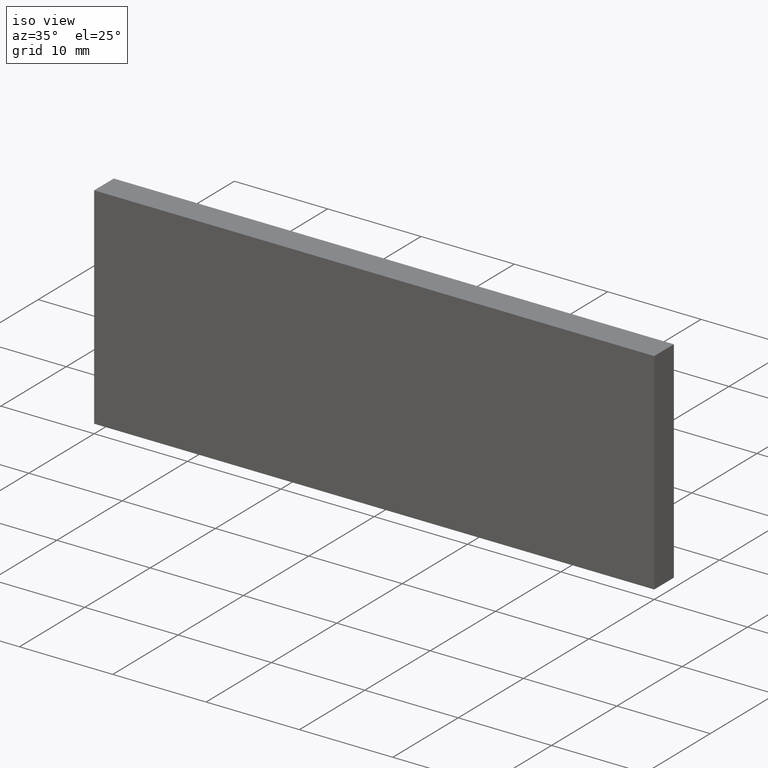
[diagram: clean part render]
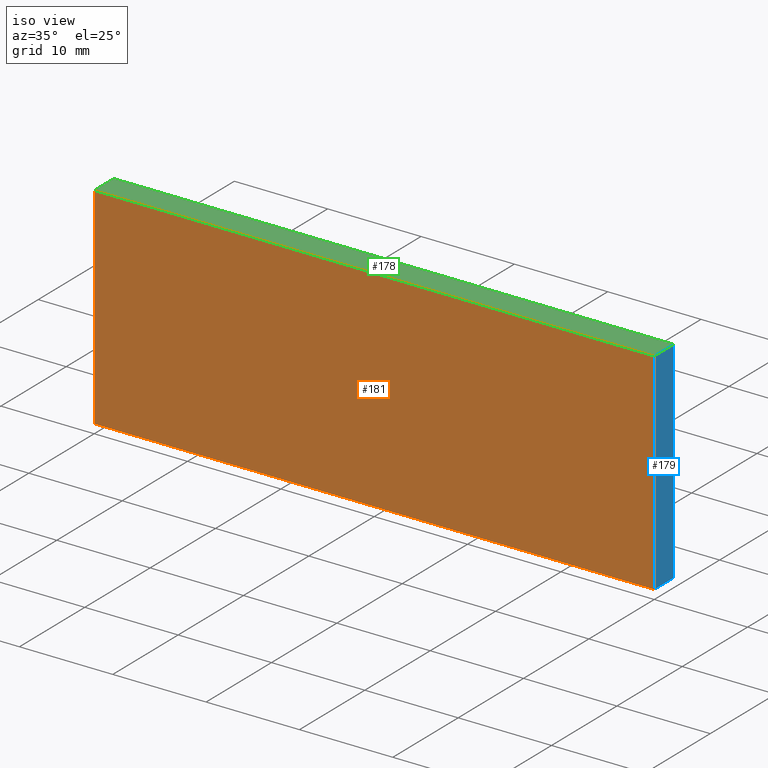
[diagram: same view with three faces highlighted in distinct colors, each labeled with its STEP entity id]
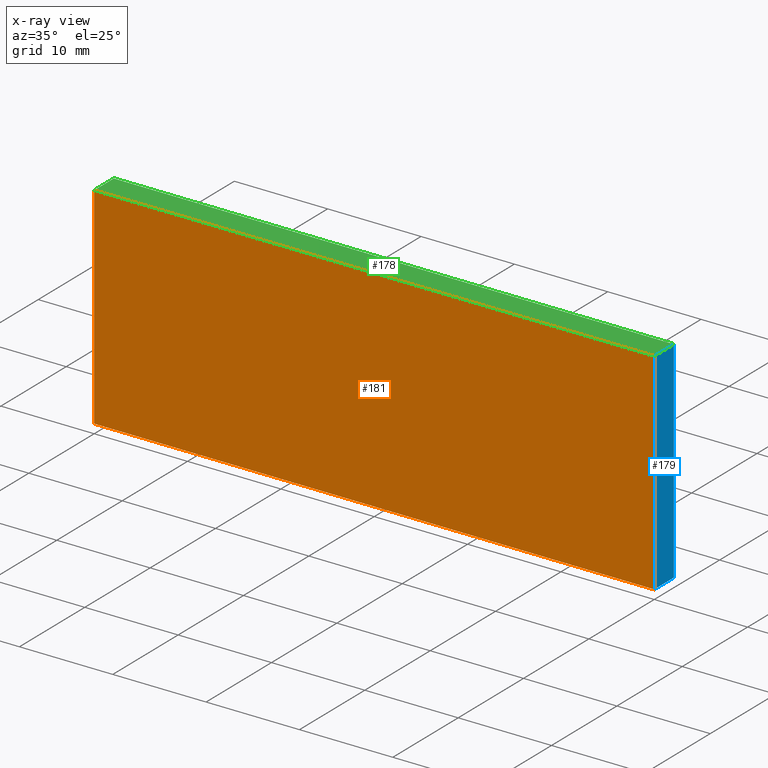
[diagram: x-ray of the same camera — body ghosted, the three highlighted faces saturated]
A machine part, iso view with three faces highlighted in distinct colors.
The next image is the same camera in x-ray (body ghosted, the three faces saturated) — at least one of them is partly hidden behind the body in this view.
Their STEP definitions:

[orange] entity #181 — the highlighted planar face has unit normal (-0, 1, 0).
#3 = CARTESIAN_POINT ( 'NONE',  ( 0.0000000000000000000, 0.0000000000000000000, -11.29999999999999900 ) ) ;
#5 = CARTESIAN_POINT ( 'NONE',  ( 30.00000000000000000, 0.0000000000000000000, -11.29999999999999900 ) ) ;
#8 = CARTESIAN_POINT ( 'NONE',  ( -30.00000000000000000, 0.0000000000000000000, 11.29999999999999900 ) ) ;
#9 = DIRECTION ( 'NONE',  ( -1.000000000000000000, -0.0000000000000000000, -0.0000000000000000000 ) ) ;
#14 = VERTEX_POINT ( 'NONE', #8 ) ;
#19 = CARTESIAN_POINT ( 'NONE',  ( -30.00000000000000000, 0.0000000000000000000, -11.29999999999999900 ) ) ;
#20 = VERTEX_POINT ( 'NONE', #5 ) ;
#21 = VERTEX_POINT ( 'NONE', #19 ) ;
#22 = CARTESIAN_POINT ( 'NONE',  ( 30.00000000000000000, 0.0000000000000000000, 11.29999999999999900 ) ) ;
#25 = VERTEX_POINT ( 'NONE', #22 ) ;
#28 = ORIENTED_EDGE ( 'NONE', *, *, #161, .F. ) ;
#33 = ORIENTED_EDGE ( 'NONE', *, *, #149, .F. ) ;
#34 = ORIENTED_EDGE ( 'NONE', *, *, #155, .F. ) ;
#35 = ORIENTED_EDGE ( 'NONE', *, *, #139, .F. ) ;
#39 = LINE ( 'NONE', #210, #44 ) ;
#44 = VECTOR ( 'NONE', #208, 1000.000000000000000 ) ;
#57 = VECTOR ( 'NONE', #9, 1000.000000000000000 ) ;
#58 = LINE ( 'NONE', #3, #57 ) ;
#72 = LINE ( 'NONE', #218, #73 ) ;
#73 = VECTOR ( 'NONE', #211, 1000.000000000000000 ) ;
#92 = LINE ( 'NONE', #198, #93 ) ;
#93 = VECTOR ( 'NONE', #209, 1000.000000000000000 ) ;
#101 = EDGE_LOOP ( 'NONE', ( #28, #33, #34, #35 ) ) ;
#114 = FACE_OUTER_BOUND ( 'NONE', #101, .T. ) ;
#139 = EDGE_CURVE ( 'NONE', #20, #21, #58, .T. ) ;
#149 = EDGE_CURVE ( 'NONE', #14, #25, #39, .T. ) ;
#155 = EDGE_CURVE ( 'NONE', #21, #14, #72, .T. ) ;
#161 = EDGE_CURVE ( 'NONE', #25, #20, #92, .T. ) ;
#170 = AXIS2_PLACEMENT_3D ( 'NONE', #267, #189, #185 ) ;
#181 = ADVANCED_FACE ( 'NONE', ( #114 ), #284, .F. ) ;
#185 = DIRECTION ( 'NONE',  ( 0.0000000000000000000, -0.0000000000000000000, 1.000000000000000000 ) ) ;
#189 = DIRECTION ( 'NONE',  ( -0.0000000000000000000, 1.000000000000000000, 0.0000000000000000000 ) ) ;
#198 = CARTESIAN_POINT ( 'NONE',  ( 30.00000000000000000, 0.0000000000000000000, 0.0000000000000000000 ) ) ;
#208 = DIRECTION ( 'NONE',  ( 1.000000000000000000, 0.0000000000000000000, 0.0000000000000000000 ) ) ;
#209 = DIRECTION ( 'NONE',  ( -0.0000000000000000000, 0.0000000000000000000, -1.000000000000000000 ) ) ;
#210 = CARTESIAN_POINT ( 'NONE',  ( 0.0000000000000000000, 0.0000000000000000000, 11.29999999999999900 ) ) ;
#211 = DIRECTION ( 'NONE',  ( 0.0000000000000000000, -0.0000000000000000000, 1.000000000000000000 ) ) ;
#218 = CARTESIAN_POINT ( 'NONE',  ( -30.00000000000000000, 0.0000000000000000000, 0.0000000000000000000 ) ) ;
#267 = CARTESIAN_POINT ( 'NONE',  ( 0.0000000000000000000, 0.0000000000000000000, 0.0000000000000000000 ) ) ;
#284 = PLANE ( 'NONE',  #170 ) ;

[blue] entity #179 — the highlighted planar face has unit normal (-1, 0, 0).
#4 = CARTESIAN_POINT ( 'NONE',  ( 30.00000000000000000, 3.000000000000000000, -11.29999999999999900 ) ) ;
#5 = CARTESIAN_POINT ( 'NONE',  ( 30.00000000000000000, 0.0000000000000000000, -11.29999999999999900 ) ) ;
#6 = VERTEX_POINT ( 'NONE', #4 ) ;
#10 = CARTESIAN_POINT ( 'NONE',  ( 30.00000000000000000, 3.000000000000000000, 11.29999999999999900 ) ) ;
#15 = CARTESIAN_POINT ( 'NONE',  ( 30.00000000000000000, 3.000000000000000000, 11.29999999999999900 ) ) ;
#20 = VERTEX_POINT ( 'NONE', #5 ) ;
#22 = CARTESIAN_POINT ( 'NONE',  ( 30.00000000000000000, 0.0000000000000000000, 11.29999999999999900 ) ) ;
#23 = DIRECTION ( 'NONE',  ( 0.0000000000000000000, 1.000000000000000000, -0.0000000000000000000 ) ) ;
#24 = VERTEX_POINT ( 'NONE', #10 ) ;
#25 = VERTEX_POINT ( 'NONE', #22 ) ;
#27 = EDGE_LOOP ( 'NONE', ( #54, #111, #32, #61 ) ) ;
#32 = ORIENTED_EDGE ( 'NONE', *, *, #148, .F. ) ;
#43 = VECTOR ( 'NONE', #23, 1000.000000000000000 ) ;
#52 = LINE ( 'NONE', #233, #53 ) ;
#53 = VECTOR ( 'NONE', #207, 1000.000000000000000 ) ;
#54 = ORIENTED_EDGE ( 'NONE', *, *, #157, .T. ) ;
#61 = ORIENTED_EDGE ( 'NONE', *, *, #161, .T. ) ;
#92 = LINE ( 'NONE', #198, #93 ) ;
#93 = VECTOR ( 'NONE', #209, 1000.000000000000000 ) ;
#94 = LINE ( 'NONE', #199, #95 ) ;
#95 = VECTOR ( 'NONE', #213, 1000.000000000000000 ) ;
#97 = FACE_OUTER_BOUND ( 'NONE', #27, .T. ) ;
#110 = LINE ( 'NONE', #15, #43 ) ;
#111 = ORIENTED_EDGE ( 'NONE', *, *, #153, .F. ) ;
#148 = EDGE_CURVE ( 'NONE', #25, #24, #110, .T. ) ;
#153 = EDGE_CURVE ( 'NONE', #24, #6, #52, .T. ) ;
#157 = EDGE_CURVE ( 'NONE', #20, #6, #94, .T. ) ;
#161 = EDGE_CURVE ( 'NONE', #25, #20, #92, .T. ) ;
#169 = AXIS2_PLACEMENT_3D ( 'NONE', #222, #263, #266 ) ;
#179 = ADVANCED_FACE ( 'NONE', ( #97 ), #243, .F. ) ;
#198 = CARTESIAN_POINT ( 'NONE',  ( 30.00000000000000000, 0.0000000000000000000, 0.0000000000000000000 ) ) ;
#199 = CARTESIAN_POINT ( 'NONE',  ( 30.00000000000000000, 3.000000000000000000, -11.29999999999999900 ) ) ;
#207 = DIRECTION ( 'NONE',  ( -0.0000000000000000000, -0.0000000000000000000, -1.000000000000000000 ) ) ;
#209 = DIRECTION ( 'NONE',  ( -0.0000000000000000000, 0.0000000000000000000, -1.000000000000000000 ) ) ;
#213 = DIRECTION ( 'NONE',  ( -0.0000000000000000000, 1.000000000000000000, 0.0000000000000000000 ) ) ;
#222 = CARTESIAN_POINT ( 'NONE',  ( 30.00000000000000000, 3.000000000000000000, 11.29999999999999900 ) ) ;
#233 = CARTESIAN_POINT ( 'NONE',  ( 30.00000000000000000, 3.000000000000000000, 11.29999999999999900 ) ) ;
#243 = PLANE ( 'NONE',  #169 ) ;
#263 = DIRECTION ( 'NONE',  ( -1.000000000000000000, 0.0000000000000000000, 0.0000000000000000000 ) ) ;
#266 = DIRECTION ( 'NONE',  ( 0.0000000000000000000, 0.0000000000000000000, 1.000000000000000000 ) ) ;

[green] entity #178 — the highlighted planar face has unit normal (0, 0, -1).
#8 = CARTESIAN_POINT ( 'NONE',  ( -30.00000000000000000, 0.0000000000000000000, 11.29999999999999900 ) ) ;
#10 = CARTESIAN_POINT ( 'NONE',  ( 30.00000000000000000, 3.000000000000000000, 11.29999999999999900 ) ) ;
#14 = VERTEX_POINT ( 'NONE', #8 ) ;
#15 = CARTESIAN_POINT ( 'NONE',  ( 30.00000000000000000, 3.000000000000000000, 11.29999999999999900 ) ) ;
#16 = VERTEX_POINT ( 'NONE', #17 ) ;
#17 = CARTESIAN_POINT ( 'NONE',  ( -30.00000000000000000, 3.000000000000000000, 11.29999999999999900 ) ) ;
#22 = CARTESIAN_POINT ( 'NONE',  ( 30.00000000000000000, 0.0000000000000000000, 11.29999999999999900 ) ) ;
#23 = DIRECTION ( 'NONE',  ( 0.0000000000000000000, 1.000000000000000000, -0.0000000000000000000 ) ) ;
#24 = VERTEX_POINT ( 'NONE', #10 ) ;
#25 = VERTEX_POINT ( 'NONE', #22 ) ;
#39 = LINE ( 'NONE', #210, #44 ) ;
#43 = VECTOR ( 'NONE', #23, 1000.000000000000000 ) ;
#44 = VECTOR ( 'NONE', #208, 1000.000000000000000 ) ;
#45 = ORIENTED_EDGE ( 'NONE', *, *, #156, .F. ) ;
#47 = ORIENTED_EDGE ( 'NONE', *, *, #149, .T. ) ;
#64 = ORIENTED_EDGE ( 'NONE', *, *, #154, .F. ) ;
#67 = ORIENTED_EDGE ( 'NONE', *, *, #148, .T. ) ;
#70 = LINE ( 'NONE', #219, #71 ) ;
#71 = VECTOR ( 'NONE', #216, 1000.000000000000000 ) ;
#74 = LINE ( 'NONE', #217, #75 ) ;
#75 = VECTOR ( 'NONE', #215, 1000.000000000000000 ) ;
#89 = FACE_OUTER_BOUND ( 'NONE', #109, .T. ) ;
#109 = EDGE_LOOP ( 'NONE', ( #67, #45, #64, #47 ) ) ;
#110 = LINE ( 'NONE', #15, #43 ) ;
#148 = EDGE_CURVE ( 'NONE', #25, #24, #110, .T. ) ;
#149 = EDGE_CURVE ( 'NONE', #14, #25, #39, .T. ) ;
#154 = EDGE_CURVE ( 'NONE', #14, #16, #70, .T. ) ;
#156 = EDGE_CURVE ( 'NONE', #16, #24, #74, .T. ) ;
#168 = AXIS2_PLACEMENT_3D ( 'NONE', #272, #244, #245 ) ;
#178 = ADVANCED_FACE ( 'NONE', ( #89 ), #226, .F. ) ;
#208 = DIRECTION ( 'NONE',  ( 1.000000000000000000, 0.0000000000000000000, 0.0000000000000000000 ) ) ;
#210 = CARTESIAN_POINT ( 'NONE',  ( 0.0000000000000000000, 0.0000000000000000000, 11.29999999999999900 ) ) ;
#215 = DIRECTION ( 'NONE',  ( 1.000000000000000000, -0.0000000000000000000, 0.0000000000000000000 ) ) ;
#216 = DIRECTION ( 'NONE',  ( 0.0000000000000000000, 1.000000000000000000, 0.0000000000000000000 ) ) ;
#217 = CARTESIAN_POINT ( 'NONE',  ( -30.00000000000000000, 3.000000000000000000, 11.29999999999999900 ) ) ;
#219 = CARTESIAN_POINT ( 'NONE',  ( -30.00000000000000000, 3.000000000000000000, 11.29999999999999900 ) ) ;
#226 = PLANE ( 'NONE',  #168 ) ;
#244 = DIRECTION ( 'NONE',  ( 0.0000000000000000000, 0.0000000000000000000, -1.000000000000000000 ) ) ;
#245 = DIRECTION ( 'NONE',  ( -1.000000000000000000, 0.0000000000000000000, -0.0000000000000000000 ) ) ;
#272 = CARTESIAN_POINT ( 'NONE',  ( -30.00000000000000000, 3.000000000000000000, 11.29999999999999900 ) ) ;